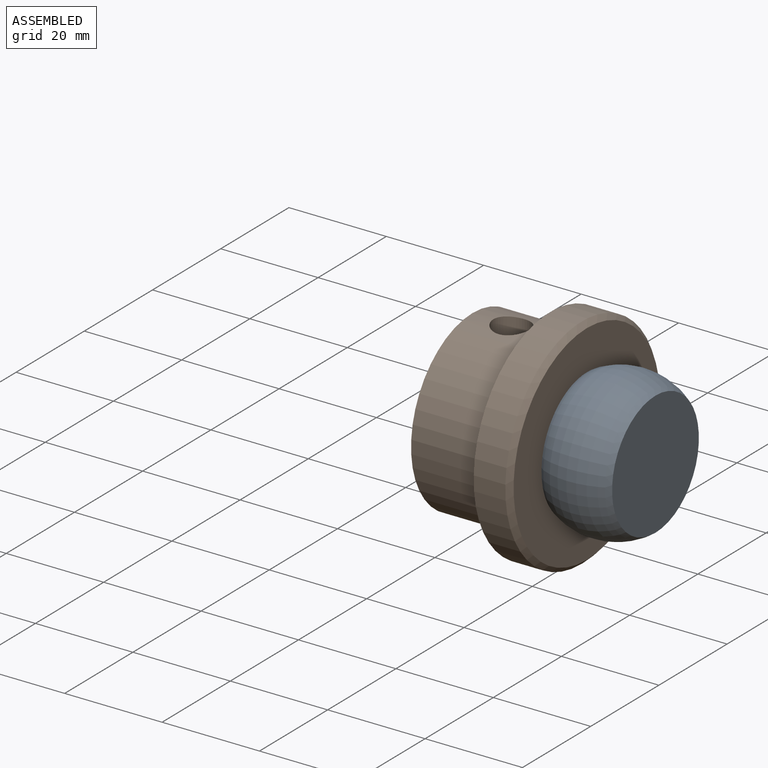
[diagram: assembled view]
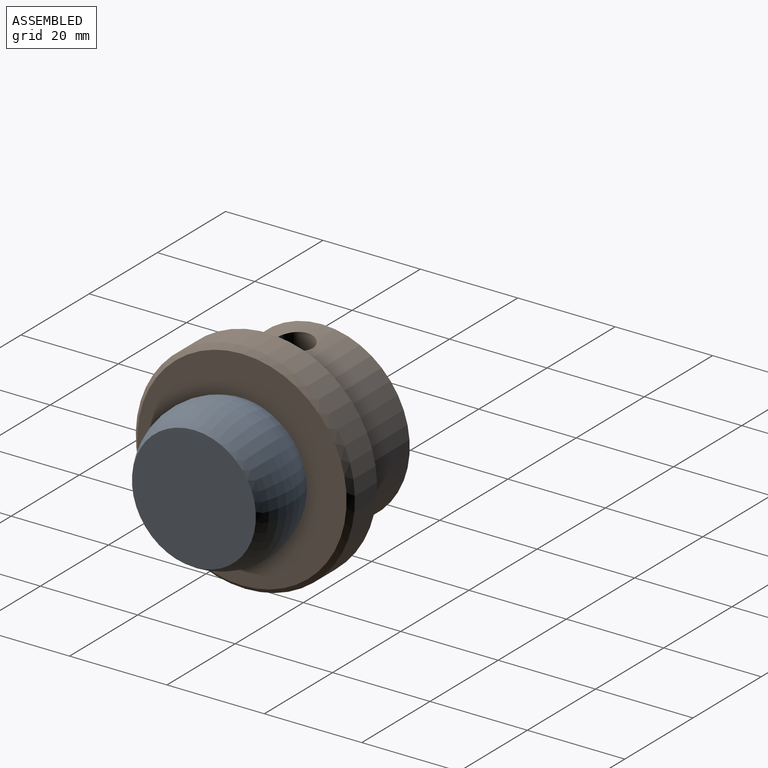
[diagram: assembled view, second angle]
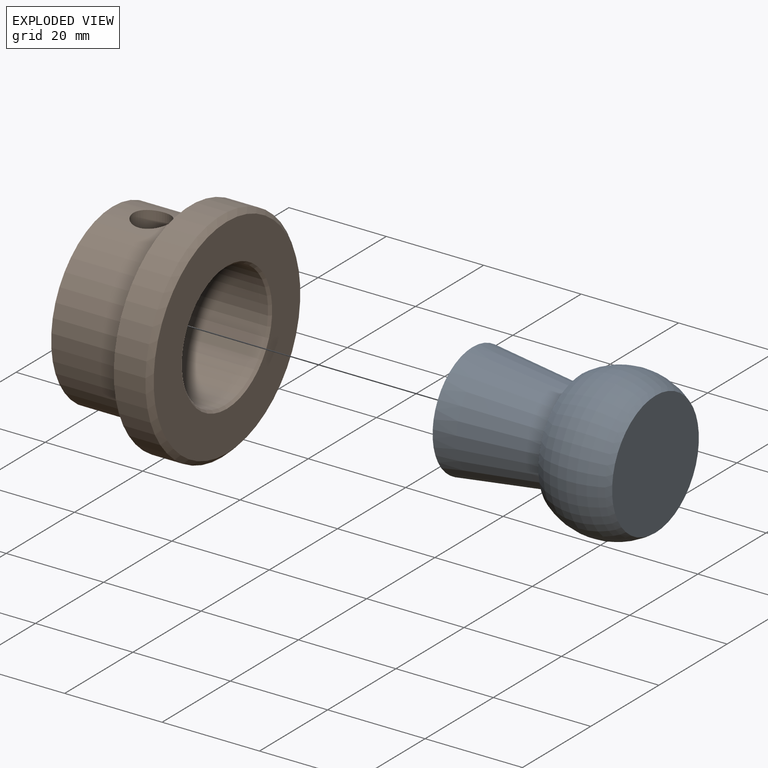
[diagram: exploded view]
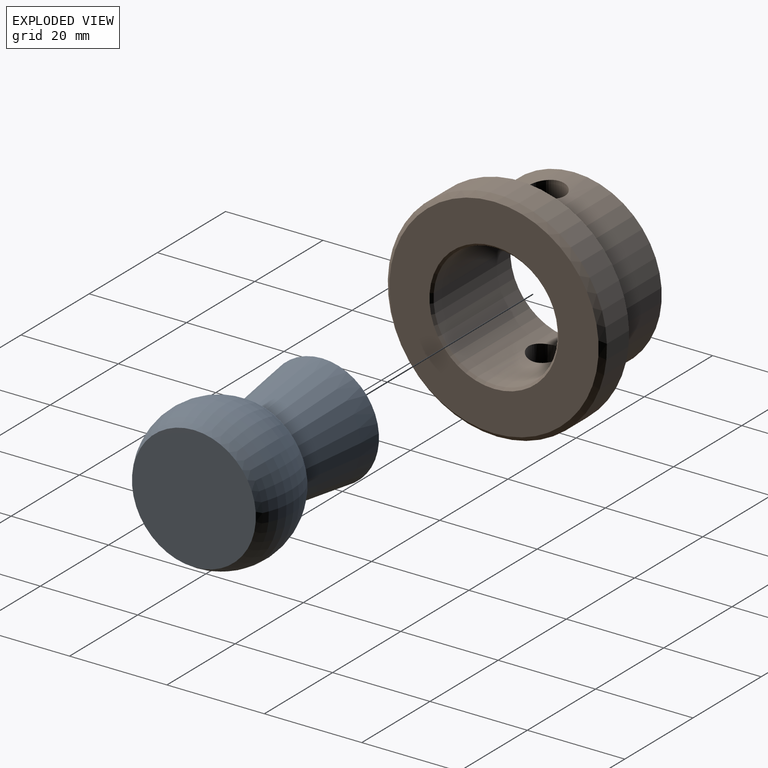
[diagram: exploded view, second angle]
ASSEMBLY  parts=2 mates=2
PART A: 5 faces, bbox 37.6x25.5x27.7 mm
  f0: plane 25.45x25.45mm, normal (1,0,0), area 508.8mm2, adj f1
  f1: torus R=1.28mm, axis (1,0,0), area 1433.2mm2, adj f0,f2
  f2: plane 25.45x25.45mm, normal (-1,0,0), area 263.9mm2, adj f1,f3
  f3: cone r=11.69mm half-angle=7.3deg, axis (-1,0,0), area 1458.7mm2, adj f2,f4
  f4: plane 23.38x23.38mm, normal (-1,0,0), area 429.1mm2, adj f3
PART B: 11 faces, bbox 23.5x45x45 mm
  f0: cylinder r=18mm len=36mm, axis (1,0,0), area 1723.3mm2, adj f3,f4,f7,f8
  f1: cylinder r=12.75mm len=25.5mm, axis (1,0,0), area 1715.5mm2, adj f7,f8,f9,f10
  f2: cylinder r=22.5mm len=45mm, axis (1,0,0), area 918.9mm2, adj f3,f6
  f3: plane 45x45mm, normal (-1,0,0), area 572.6mm2, adj f0,f2
  f4: plane 36x36mm, normal (-1,0,0), area 466.3mm2, adj f0,f9
  f5: plane 43x43mm, normal (1,0,0), area 900.7mm2, adj f6,f10
  f6: cone r=22.5mm half-angle=45deg, axis (-1,0,0), area 195.5mm2, adj f2,f5
  f7: cylinder r=3.7mm len=7.4mm, axis (0,0,1), area 123.9mm2, adj f0,f1
  f8: cylinder r=3.7mm len=7.4mm, axis (0,0,-1), area 123.9mm2, adj f0,f1
  f9: cone r=13.25mm half-angle=45deg, axis (-1,0,0), area 57.8mm2, adj f1,f4
  f10: cone r=12.75mm half-angle=45deg, axis (1,0,0), area 57.8mm2, adj f1,f5
PLACE A t=(-39.45,-9.77,3.54)mm
PLACE B t=(-15.95,-9.77,3.54)mm fixed
MATE planar B.f0 <-> A.f1  axis (-1,0,0) through (-39.45,-9.77,3.54)mm
MATE slider B.f0 <-> A.f1  axis (1,0,0) through (-15.95,-9.77,3.54)mm
